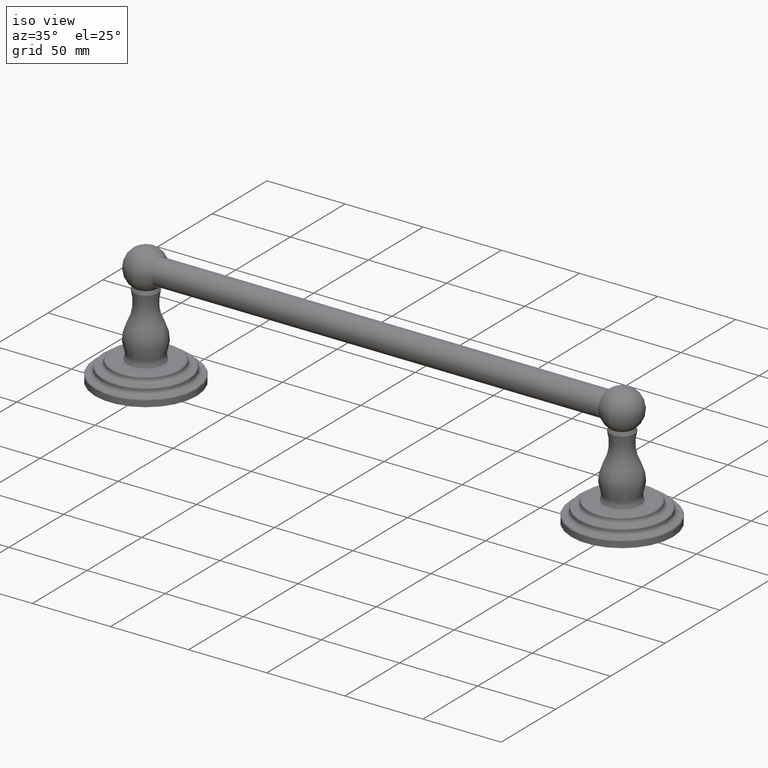
[diagram: clean part render]
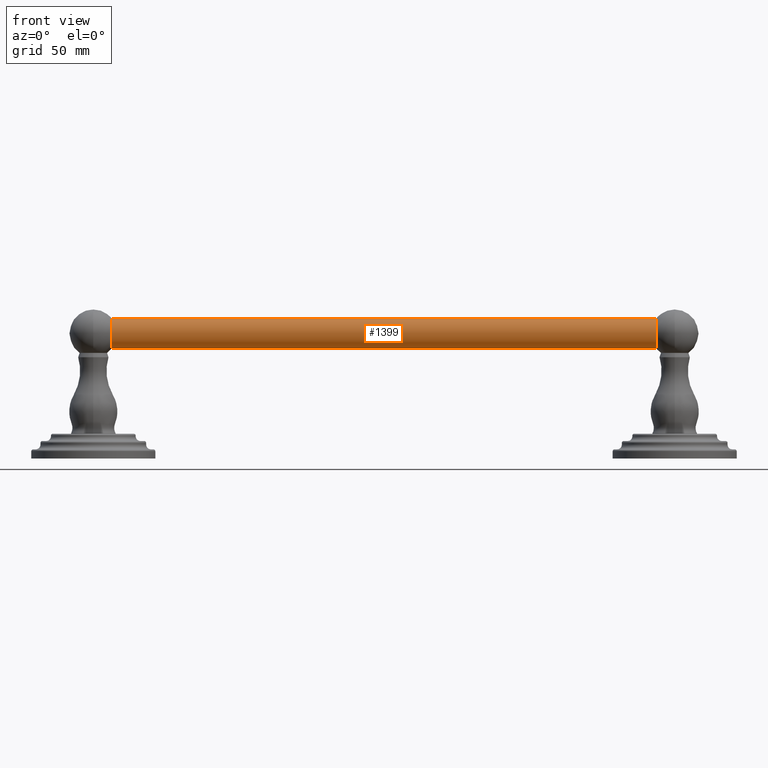
[diagram: tour spotlight — one face highlighted and labeled with its STEP entity id]
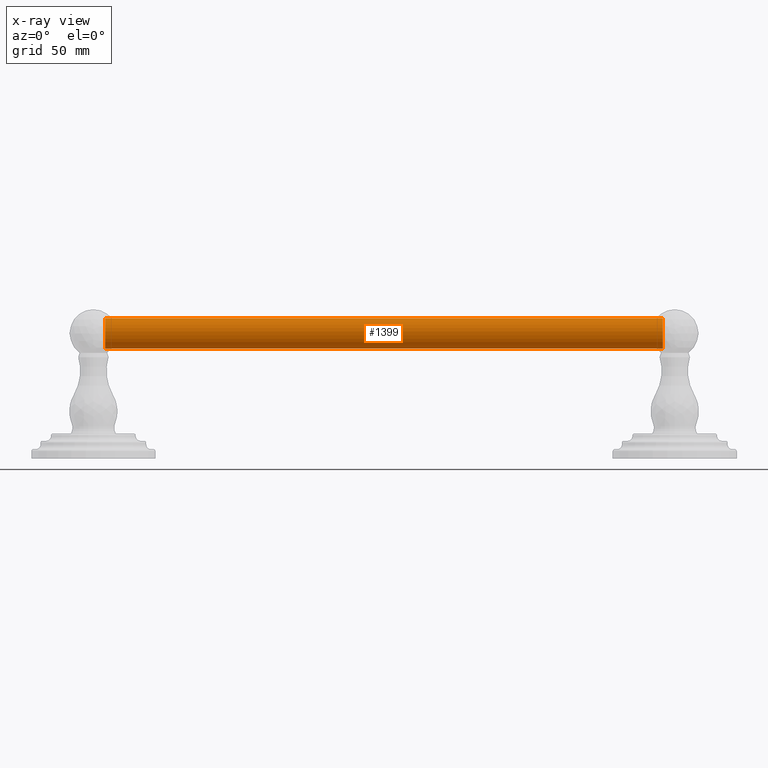
[diagram: x-ray of the same camera — body ghosted, this tour face saturated]
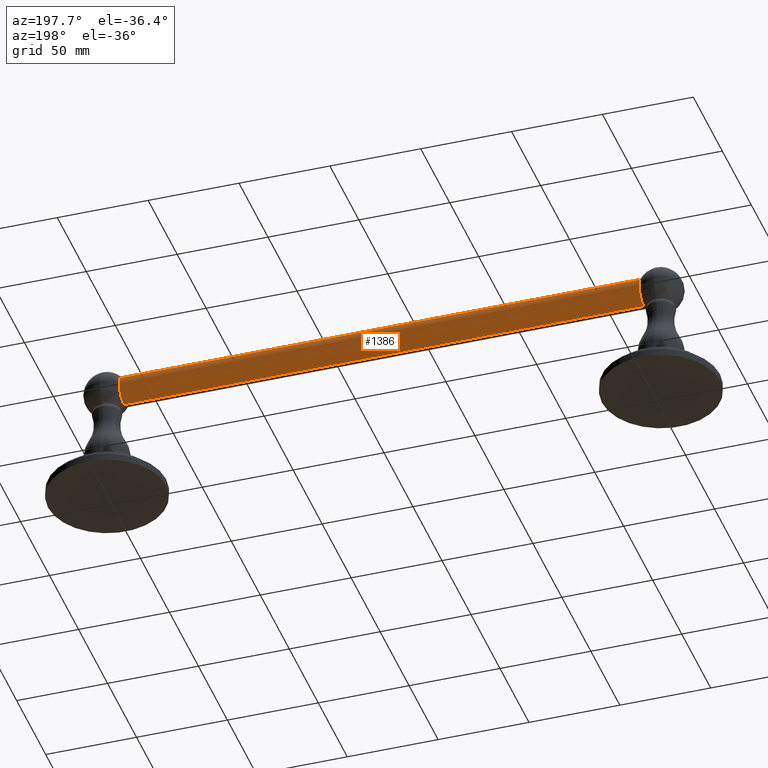
[diagram: tour spotlight — one face highlighted and labeled with its STEP entity id]
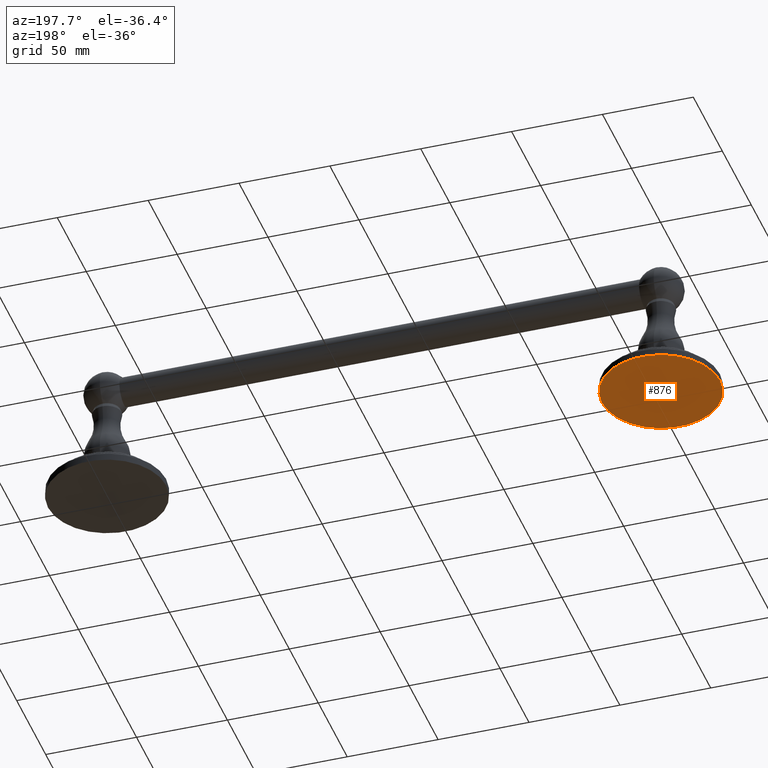
[diagram: tour spotlight — one face highlighted and labeled with its STEP entity id]
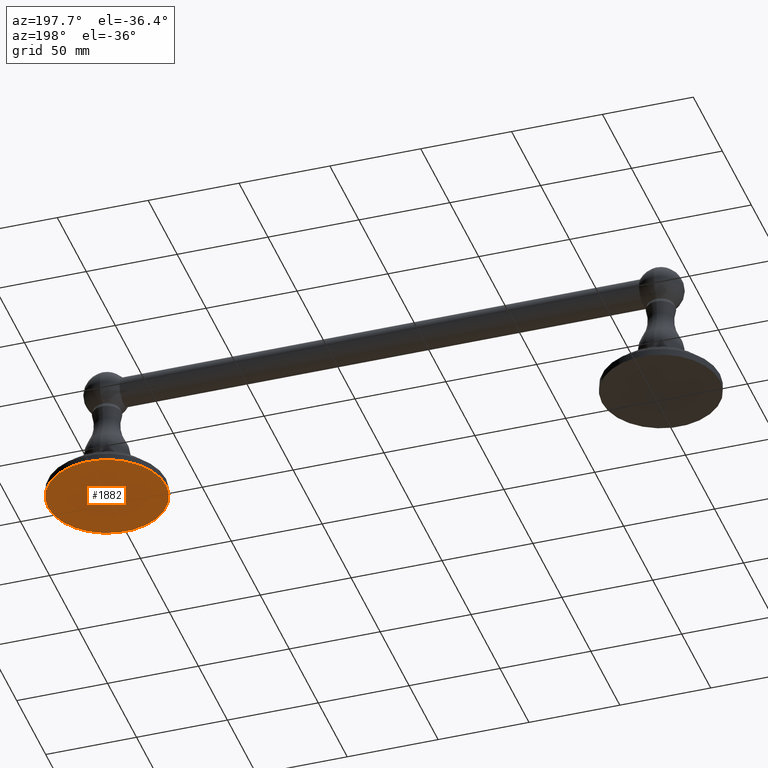
[diagram: tour spotlight — one face highlighted and labeled with its STEP entity id]
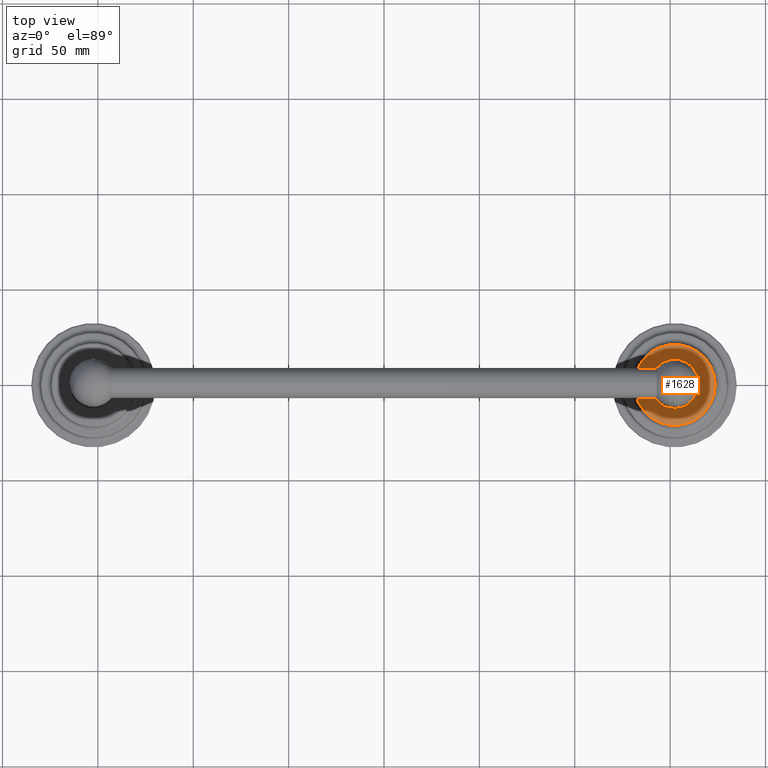
[diagram: tour spotlight — one face highlighted and labeled with its STEP entity id]
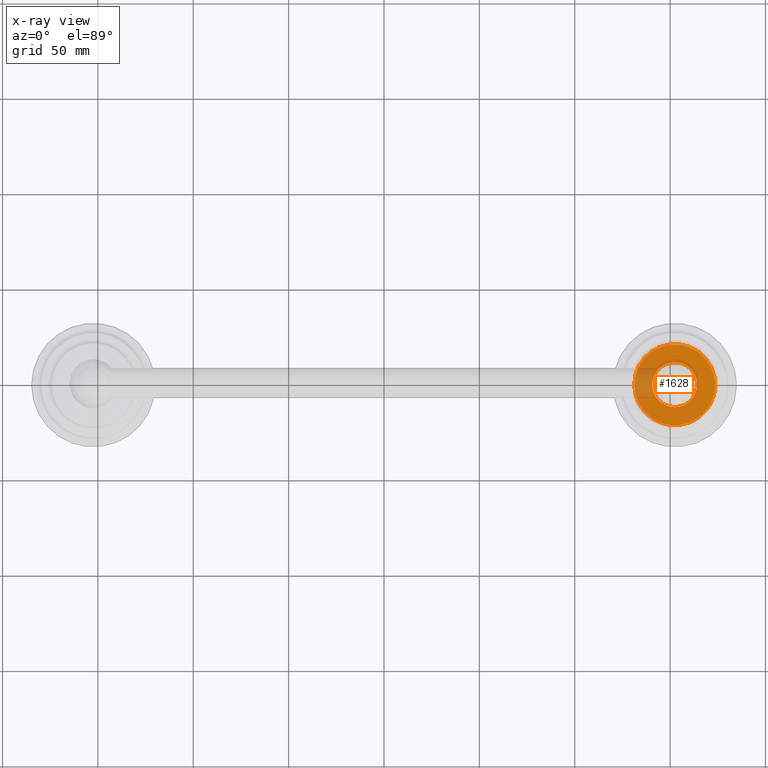
[diagram: x-ray of the same camera — body ghosted, this tour face saturated]
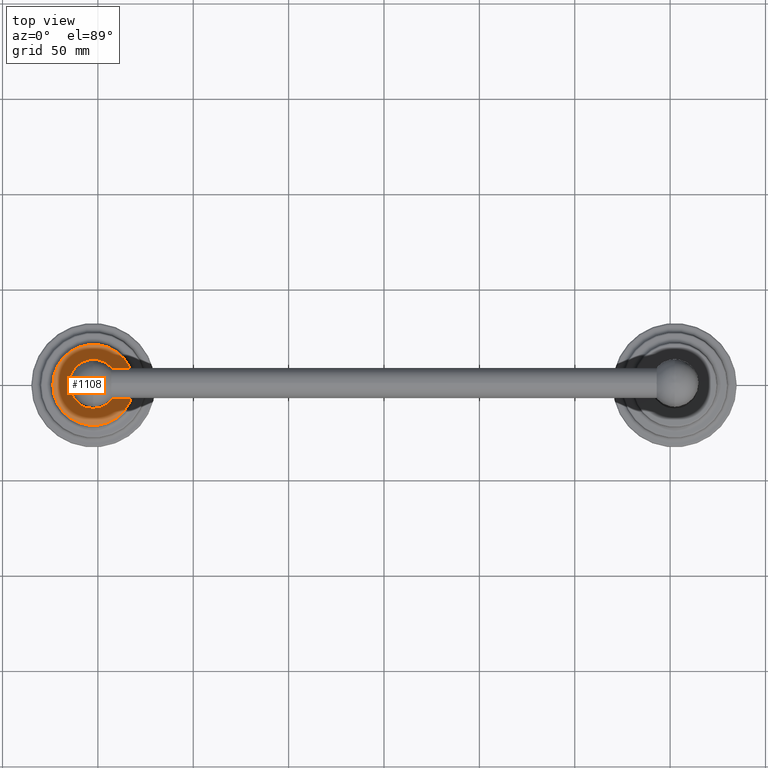
[diagram: tour spotlight — one face highlighted and labeled with its STEP entity id]
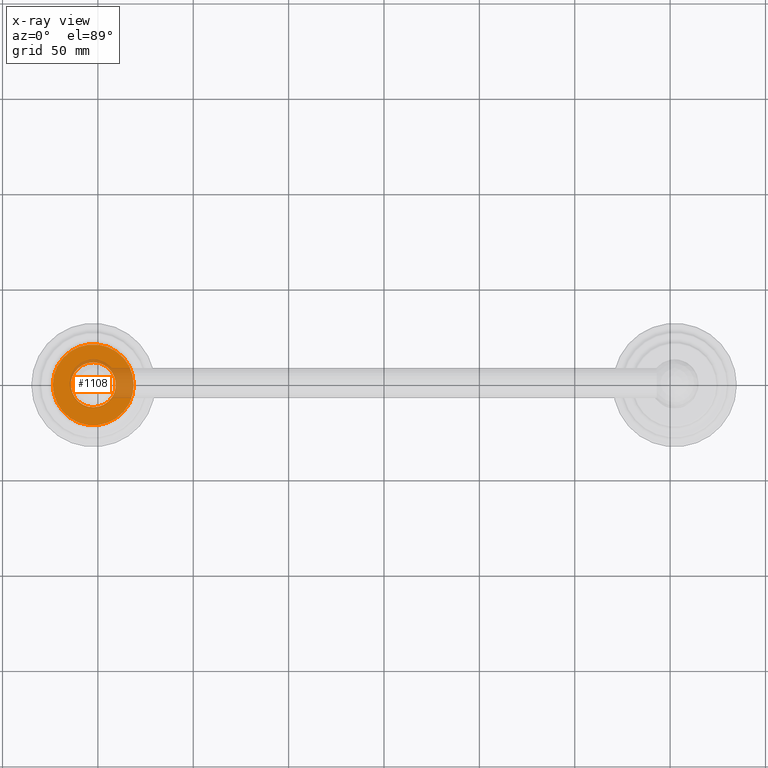
[diagram: x-ray of the same camera — body ghosted, this tour face saturated]
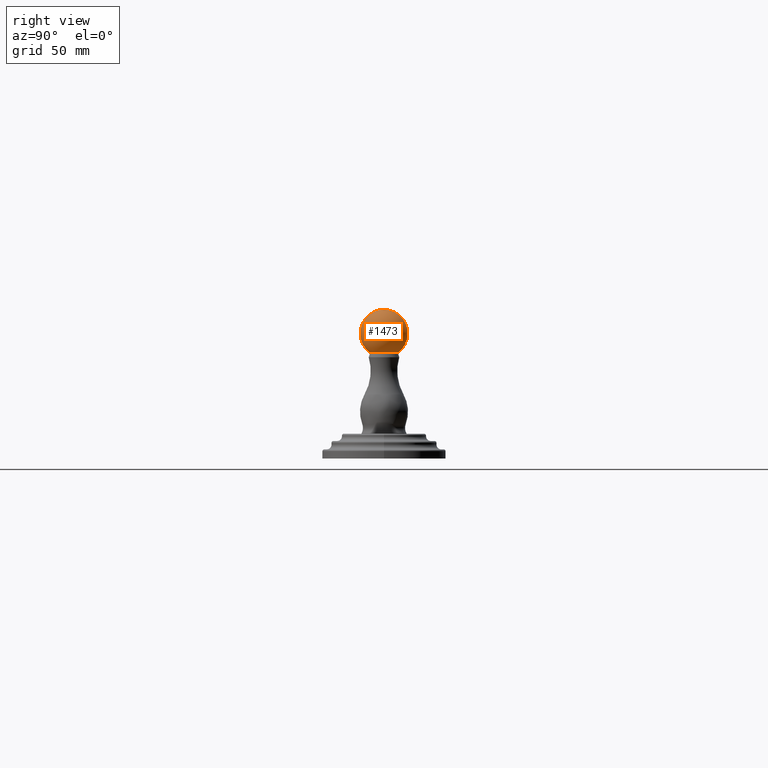
[diagram: tour spotlight — one face highlighted and labeled with its STEP entity id]
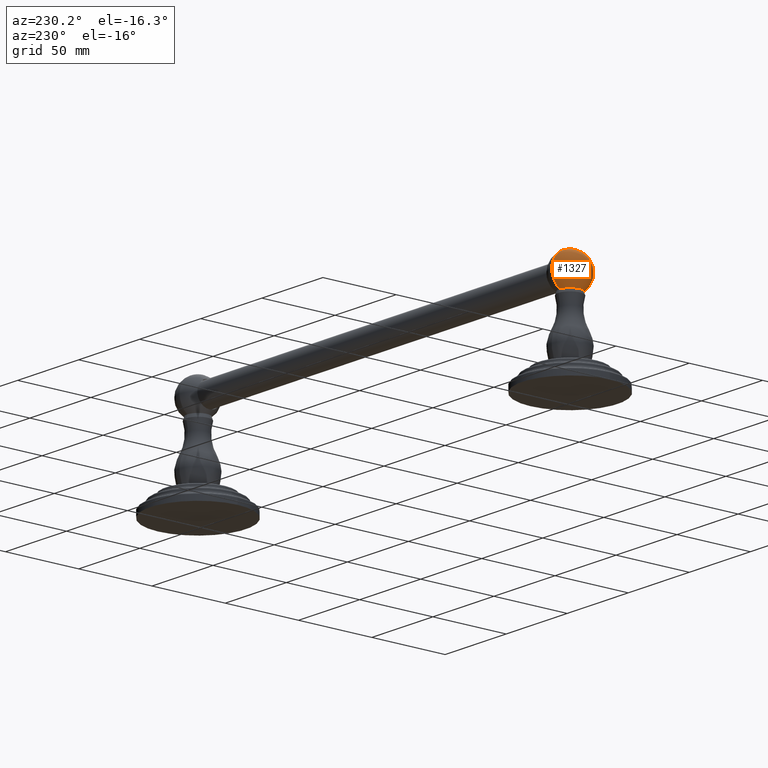
[diagram: tour spotlight — one face highlighted and labeled with its STEP entity id]
A machine part: a face-by-face anatomy tour. The part has 72 B-rep faces; the first image is the clean iso view, then the 8 largest visible faces are spotlighted one at a time (largest first), each with its STEP entity span.

Face 1 — front view, entity #1399. An x-ray twin of the same camera follows (body ghosted, this face saturated) — the face is partly hidden behind the body. In plain terms, the highlighted cylindrical surface (edge-blend (fillet) strip) has radius 7.9375 mm, axis along (1, 0, 0).
Definition (entity closure, byte-faithful):
#326=CARTESIAN_POINT('',(-5.755E0,0.E0,2.582649490855E0));
#327=DIRECTION('',(1.E0,0.E0,0.E0));
#328=DIRECTION('',(0.E0,0.E0,1.E0));
#329=AXIS2_PLACEMENT_3D('',#326,#327,#328);
#340=DIRECTION('',(1.E0,0.E0,0.E0));
#341=VECTOR('',#340,1.151E1);
#342=CARTESIAN_POINT('',(-5.755E0,0.E0,2.270149490855E0));
#343=LINE('',#342,#341);
#344=DIRECTION('',(1.E0,0.E0,0.E0));
#345=VECTOR('',#344,1.151E1);
#346=CARTESIAN_POINT('',(-5.755E0,0.E0,2.895149490855E0));
#347=LINE('',#346,#345);
#353=CARTESIAN_POINT('',(5.755E0,0.E0,2.582649490855E0));
#354=DIRECTION('',(1.E0,0.E0,0.E0));
#355=DIRECTION('',(0.E0,0.E0,1.E0));
#356=AXIS2_PLACEMENT_3D('',#353,#354,#355);
#842=CARTESIAN_POINT('',(-5.755E0,0.E0,2.270149490855E0));
#843=CARTESIAN_POINT('',(-5.755E0,0.E0,2.895149490855E0));
#844=VERTEX_POINT('',#842);
#845=VERTEX_POINT('',#843);
#846=CARTESIAN_POINT('',(5.755E0,0.E0,2.270149490855E0));
#847=CARTESIAN_POINT('',(5.755E0,0.E0,2.895149490855E0));
#848=VERTEX_POINT('',#846);
#849=VERTEX_POINT('',#847);
#1387=CARTESIAN_POINT('',(-5.945E0,0.E0,2.582649490855E0));
#1388=DIRECTION('',(1.E0,0.E0,0.E0));
#1389=DIRECTION('',(0.E0,0.E0,-1.E0));
#1390=AXIS2_PLACEMENT_3D('',#1387,#1388,#1389);
#1391=CYLINDRICAL_SURFACE('',#1390,3.125E-1);
#1392=ORIENTED_EDGE('',*,*,#1355,.F.);
#1393=ORIENTED_EDGE('',*,*,#1382,.T.);
#1395=ORIENTED_EDGE('',*,*,#1394,.T.);
#1396=ORIENTED_EDGE('',*,*,#1378,.F.);
#1397=EDGE_LOOP('',(#1392,#1393,#1395,#1396));
#1398=FACE_OUTER_BOUND('',#1397,.F.);
#1399=ADVANCED_FACE('',(#1398),#1391,.T.);
#330=CIRCLE('',#329,3.125E-1);
#357=CIRCLE('',#356,3.125E-1);
#1355=EDGE_CURVE('',#845,#844,#330,.T.);
#1378=EDGE_CURVE('',#844,#848,#343,.T.);
#1382=EDGE_CURVE('',#845,#849,#347,.T.);
#1394=EDGE_CURVE('',#849,#848,#357,.T.);

Face 2 — auxiliary view, entity #1386. In plain terms, the highlighted cylindrical surface (edge-blend (fillet) strip) has radius 7.9375 mm, axis along (1, 0, 0).
Definition (entity closure, byte-faithful):
#321=CARTESIAN_POINT('',(-5.755E0,0.E0,2.582649490855E0));
#322=DIRECTION('',(1.E0,0.E0,0.E0));
#323=DIRECTION('',(0.E0,0.E0,-1.E0));
#324=AXIS2_PLACEMENT_3D('',#321,#322,#323);
#340=DIRECTION('',(1.E0,0.E0,0.E0));
#341=VECTOR('',#340,1.151E1);
#342=CARTESIAN_POINT('',(-5.755E0,0.E0,2.270149490855E0));
#343=LINE('',#342,#341);
#344=DIRECTION('',(1.E0,0.E0,0.E0));
#345=VECTOR('',#344,1.151E1);
#346=CARTESIAN_POINT('',(-5.755E0,0.E0,2.895149490855E0));
#347=LINE('',#346,#345);
#348=CARTESIAN_POINT('',(5.755E0,0.E0,2.582649490855E0));
#349=DIRECTION('',(1.E0,0.E0,0.E0));
#350=DIRECTION('',(0.E0,0.E0,-1.E0));
#351=AXIS2_PLACEMENT_3D('',#348,#349,#350);
#842=CARTESIAN_POINT('',(-5.755E0,0.E0,2.270149490855E0));
#843=CARTESIAN_POINT('',(-5.755E0,0.E0,2.895149490855E0));
#844=VERTEX_POINT('',#842);
#845=VERTEX_POINT('',#843);
#846=CARTESIAN_POINT('',(5.755E0,0.E0,2.270149490855E0));
#847=CARTESIAN_POINT('',(5.755E0,0.E0,2.895149490855E0));
#848=VERTEX_POINT('',#846);
#849=VERTEX_POINT('',#847);
#1372=CARTESIAN_POINT('',(-5.945E0,0.E0,2.582649490855E0));
#1373=DIRECTION('',(1.E0,0.E0,0.E0));
#1374=DIRECTION('',(0.E0,0.E0,-1.E0));
#1375=AXIS2_PLACEMENT_3D('',#1372,#1373,#1374);
#1376=CYLINDRICAL_SURFACE('',#1375,3.125E-1);
#1377=ORIENTED_EDGE('',*,*,#1353,.F.);
#1379=ORIENTED_EDGE('',*,*,#1378,.T.);
#1381=ORIENTED_EDGE('',*,*,#1380,.T.);
#1383=ORIENTED_EDGE('',*,*,#1382,.F.);
#1384=EDGE_LOOP('',(#1377,#1379,#1381,#1383));
#1385=FACE_OUTER_BOUND('',#1384,.F.);
#1386=ADVANCED_FACE('',(#1385),#1376,.T.);
#325=CIRCLE('',#324,3.125E-1);
#352=CIRCLE('',#351,3.125E-1);
#1353=EDGE_CURVE('',#844,#845,#325,.T.);
#1378=EDGE_CURVE('',#844,#848,#343,.T.);
#1380=EDGE_CURVE('',#848,#849,#352,.T.);
#1382=EDGE_CURVE('',#845,#849,#347,.T.);

Face 3 — auxiliary view, entity #876. In plain terms, the highlighted planar face has unit normal (0, 0, 1).
Definition (entity closure, byte-faithful):
#2=CARTESIAN_POINT('',(-6.E0,0.E0,0.E0));
#3=DIRECTION('',(0.E0,0.E0,1.E0));
#4=DIRECTION('',(-1.E0,0.E0,0.E0));
#5=AXIS2_PLACEMENT_3D('',#2,#3,#4);
#12=CARTESIAN_POINT('',(-6.E0,0.E0,0.E0));
#13=DIRECTION('',(0.E0,0.E0,-1.E0));
#14=DIRECTION('',(-1.E0,0.E0,0.E0));
#15=AXIS2_PLACEMENT_3D('',#12,#13,#14);
#722=CARTESIAN_POINT('',(-7.28E0,0.E0,0.E0));
#723=CARTESIAN_POINT('',(-4.72E0,0.E0,0.E0));
#724=VERTEX_POINT('',#722);
#725=VERTEX_POINT('',#723);
#866=CARTESIAN_POINT('',(-6.E0,1.2405E0,0.E0));
#867=DIRECTION('',(0.E0,0.E0,1.E0));
#868=DIRECTION('',(0.E0,1.E0,0.E0));
#869=AXIS2_PLACEMENT_3D('',#866,#867,#868);
#870=PLANE('',#869);
#871=ORIENTED_EDGE('',*,*,#855,.T.);
#873=ORIENTED_EDGE('',*,*,#872,.F.);
#874=EDGE_LOOP('',(#871,#873));
#875=FACE_OUTER_BOUND('',#874,.F.);
#876=ADVANCED_FACE('',(#875),#870,.F.);
#6=CIRCLE('',#5,1.28E0);
#16=CIRCLE('',#15,1.28E0);
#855=EDGE_CURVE('',#724,#725,#6,.T.);
#872=EDGE_CURVE('',#724,#725,#16,.T.);

Face 4 — auxiliary view, entity #1882. In plain terms, the highlighted planar face has unit normal (0, 0, 1).
Definition (entity closure, byte-faithful):
#640=CARTESIAN_POINT('',(6.E0,0.E0,0.E0));
#641=DIRECTION('',(0.E0,0.E0,-1.E0));
#642=DIRECTION('',(-1.E0,0.E0,0.E0));
#643=AXIS2_PLACEMENT_3D('',#640,#641,#642);
#658=CARTESIAN_POINT('',(6.E0,0.E0,0.E0));
#659=DIRECTION('',(0.E0,0.E0,1.E0));
#660=DIRECTION('',(-1.E0,0.E0,0.E0));
#661=AXIS2_PLACEMENT_3D('',#658,#659,#660);
#766=CARTESIAN_POINT('',(4.72E0,0.E0,0.E0));
#767=CARTESIAN_POINT('',(7.28E0,0.E0,0.E0));
#768=VERTEX_POINT('',#766);
#769=VERTEX_POINT('',#767);
#1872=CARTESIAN_POINT('',(6.E0,1.2405E0,0.E0));
#1873=DIRECTION('',(0.E0,0.E0,1.E0));
#1874=DIRECTION('',(0.E0,1.E0,0.E0));
#1875=AXIS2_PLACEMENT_3D('',#1872,#1873,#1874);
#1876=PLANE('',#1875);
#1878=ORIENTED_EDGE('',*,*,#1877,.T.);
#1879=ORIENTED_EDGE('',*,*,#1862,.F.);
#1880=EDGE_LOOP('',(#1878,#1879));
#1881=FACE_OUTER_BOUND('',#1880,.F.);
#1882=ADVANCED_FACE('',(#1881),#1876,.F.);
#644=CIRCLE('',#643,1.28E0);
#662=CIRCLE('',#661,1.28E0);
#1862=EDGE_CURVE('',#768,#769,#644,.T.);
#1877=EDGE_CURVE('',#768,#769,#662,.T.);

Face 5 — top view, entity #1628. An x-ray twin of the same camera follows (body ghosted, this face saturated) — the face is partly hidden behind the body. In plain terms, the highlighted planar face has unit normal (0, 0, 1).
Definition (entity closure, byte-faithful):
#474=CARTESIAN_POINT('',(6.E0,0.E0,5.12E-1));
#475=DIRECTION('',(0.E0,0.E0,1.E0));
#476=DIRECTION('',(2.488430917263E-14,-1.E0,0.E0));
#477=AXIS2_PLACEMENT_3D('',#474,#475,#476);
#479=CARTESIAN_POINT('',(6.E0,0.E0,5.12E-1));
#480=DIRECTION('',(0.E0,0.E0,1.E0));
#481=DIRECTION('',(2.488430917263E-14,1.E0,0.E0));
#482=AXIS2_PLACEMENT_3D('',#479,#480,#481);
#484=CARTESIAN_POINT('',(6.E0,0.E0,5.12E-1));
#485=DIRECTION('',(0.E0,0.E0,1.E0));
#486=DIRECTION('',(-1.E0,0.E0,0.E0));
#487=AXIS2_PLACEMENT_3D('',#484,#485,#486);
#494=CARTESIAN_POINT('',(6.E0,0.E0,5.12E-1));
#495=DIRECTION('',(0.E0,0.E0,1.E0));
#496=DIRECTION('',(1.E0,0.E0,0.E0));
#497=AXIS2_PLACEMENT_3D('',#494,#495,#496);
#770=CARTESIAN_POINT('',(5.165E0,0.E0,5.12E-1));
#771=CARTESIAN_POINT('',(6.835E0,0.E0,5.12E-1));
#772=VERTEX_POINT('',#770);
#773=VERTEX_POINT('',#771);
#838=CARTESIAN_POINT('',(6.E0,-4.64E-1,5.12E-1));
#839=CARTESIAN_POINT('',(6.E0,4.64E-1,5.12E-1));
#840=VERTEX_POINT('',#838);
#841=VERTEX_POINT('',#839);
#1612=CARTESIAN_POINT('',(6.E0,0.E0,5.12E-1));
#1613=DIRECTION('',(0.E0,0.E0,1.E0));
#1614=DIRECTION('',(-1.E0,0.E0,0.E0));
#1615=AXIS2_PLACEMENT_3D('',#1612,#1613,#1614);
#1616=PLANE('',#1615);
#1618=ORIENTED_EDGE('',*,*,#1617,.F.);
#1620=ORIENTED_EDGE('',*,*,#1619,.F.);
#1621=EDGE_LOOP('',(#1618,#1620));
#1622=FACE_OUTER_BOUND('',#1621,.F.);
#1623=ORIENTED_EDGE('',*,*,#1602,.T.);
#1625=ORIENTED_EDGE('',*,*,#1624,.T.);
#1626=EDGE_LOOP('',(#1623,#1625));
#1627=FACE_BOUND('',#1626,.F.);
#1628=ADVANCED_FACE('',(#1622,#1627),#1616,.T.);
#478=CIRCLE('',#477,4.64E-1);
#483=CIRCLE('',#482,4.64E-1);
#488=CIRCLE('',#487,8.35E-1);
#498=CIRCLE('',#497,8.35E-1);
#1602=EDGE_CURVE('',#840,#841,#478,.T.);
#1617=EDGE_CURVE('',#772,#773,#488,.T.);
#1619=EDGE_CURVE('',#773,#772,#498,.T.);
#1624=EDGE_CURVE('',#841,#840,#483,.T.);

Face 6 — top view, entity #1108. An x-ray twin of the same camera follows (body ghosted, this face saturated) — the face is partly hidden behind the body. In plain terms, the highlighted planar face has unit normal (0, 0, 1).
Definition (entity closure, byte-faithful):
#148=CARTESIAN_POINT('',(-6.E0,0.E0,5.12E-1));
#149=DIRECTION('',(0.E0,0.E0,1.E0));
#150=DIRECTION('',(-1.E0,0.E0,0.E0));
#151=AXIS2_PLACEMENT_3D('',#148,#149,#150);
#158=CARTESIAN_POINT('',(-6.E0,0.E0,5.12E-1));
#159=DIRECTION('',(0.E0,0.E0,1.E0));
#160=DIRECTION('',(2.488430917263E-14,-1.E0,0.E0));
#161=AXIS2_PLACEMENT_3D('',#158,#159,#160);
#163=CARTESIAN_POINT('',(-6.E0,0.E0,5.12E-1));
#164=DIRECTION('',(0.E0,0.E0,1.E0));
#165=DIRECTION('',(2.488430917263E-14,1.E0,0.E0));
#166=AXIS2_PLACEMENT_3D('',#163,#164,#165);
#168=CARTESIAN_POINT('',(-6.E0,0.E0,5.12E-1));
#169=DIRECTION('',(0.E0,0.E0,1.E0));
#170=DIRECTION('',(1.E0,0.E0,0.E0));
#171=AXIS2_PLACEMENT_3D('',#168,#169,#170);
#726=CARTESIAN_POINT('',(-6.835E0,0.E0,5.12E-1));
#727=CARTESIAN_POINT('',(-5.165E0,0.E0,5.12E-1));
#728=VERTEX_POINT('',#726);
#729=VERTEX_POINT('',#727);
#804=CARTESIAN_POINT('',(-6.E0,-4.64E-1,5.12E-1));
#805=CARTESIAN_POINT('',(-6.E0,4.64E-1,5.12E-1));
#806=VERTEX_POINT('',#804);
#807=VERTEX_POINT('',#805);
#1092=CARTESIAN_POINT('',(-6.E0,0.E0,5.12E-1));
#1093=DIRECTION('',(0.E0,0.E0,1.E0));
#1094=DIRECTION('',(-1.E0,0.E0,0.E0));
#1095=AXIS2_PLACEMENT_3D('',#1092,#1093,#1094);
#1096=PLANE('',#1095);
#1097=ORIENTED_EDGE('',*,*,#1082,.F.);
#1099=ORIENTED_EDGE('',*,*,#1098,.F.);
#1100=EDGE_LOOP('',(#1097,#1099));
#1101=FACE_OUTER_BOUND('',#1100,.F.);
#1103=ORIENTED_EDGE('',*,*,#1102,.T.);
#1105=ORIENTED_EDGE('',*,*,#1104,.T.);
#1106=EDGE_LOOP('',(#1103,#1105));
#1107=FACE_BOUND('',#1106,.F.);
#1108=ADVANCED_FACE('',(#1101,#1107),#1096,.T.);
#152=CIRCLE('',#151,8.35E-1);
#162=CIRCLE('',#161,4.64E-1);
#167=CIRCLE('',#166,4.64E-1);
#172=CIRCLE('',#171,8.35E-1);
#1082=EDGE_CURVE('',#728,#729,#152,.T.);
#1098=EDGE_CURVE('',#729,#728,#172,.T.);
#1102=EDGE_CURVE('',#806,#807,#162,.T.);
#1104=EDGE_CURVE('',#807,#806,#167,.T.);

Face 7 — right view, entity #1473. In plain terms, the highlighted spherical surface has radius 12.5161 mm.
Definition (entity closure, byte-faithful):
#376=CARTESIAN_POINT('',(6.E0,0.E0,2.582649490855E0));
#377=DIRECTION('',(-1.E0,0.E0,0.E0));
#378=DIRECTION('',(0.E0,-5.777922344719E-1,-8.161838847858E-1));
#379=AXIS2_PLACEMENT_3D('',#376,#377,#378);
#386=CARTESIAN_POINT('',(6.E0,0.E0,2.582649490855E0));
#387=DIRECTION('',(1.E0,0.E0,0.E0));
#388=DIRECTION('',(0.E0,5.777922344719E-1,-8.161838847858E-1));
#389=AXIS2_PLACEMENT_3D('',#386,#387,#388);
#401=CARTESIAN_POINT('',(6.E0,0.E0,2.180466186033E0));
#402=DIRECTION('',(0.E0,0.E0,1.E0));
#403=DIRECTION('',(0.E0,-1.E0,0.E0));
#404=AXIS2_PLACEMENT_3D('',#401,#402,#403);
#809=CARTESIAN_POINT('',(6.E0,-2.847132793135E-1,2.180466186033E0));
#811=VERTEX_POINT('',#809);
#812=CARTESIAN_POINT('',(6.E0,0.E0,3.075410144819E0));
#813=VERTEX_POINT('',#812);
#815=CARTESIAN_POINT('',(6.E0,2.847132793135E-1,2.180466186033E0));
#817=VERTEX_POINT('',#815);
#1462=CARTESIAN_POINT('',(6.E0,0.E0,2.582649490855E0));
#1463=DIRECTION('',(0.E0,0.E0,1.E0));
#1464=DIRECTION('',(0.E0,-1.E0,0.E0));
#1465=AXIS2_PLACEMENT_3D('',#1462,#1463,#1464);
#1466=SPHERICAL_SURFACE('',#1465,4.927606539636E-1);
#1467=ORIENTED_EDGE('',*,*,#1449,.T.);
#1468=ORIENTED_EDGE('',*,*,#1453,.F.);
#1470=ORIENTED_EDGE('',*,*,#1469,.F.);
#1471=EDGE_LOOP('',(#1467,#1468,#1470));
#1472=FACE_OUTER_BOUND('',#1471,.F.);
#1473=ADVANCED_FACE('',(#1472),#1466,.T.);
#380=CIRCLE('',#379,4.927606539636E-1);
#390=CIRCLE('',#389,4.927606539636E-1);
#405=CIRCLE('',#404,2.847132793135E-1);
#1449=EDGE_CURVE('',#811,#813,#380,.T.);
#1453=EDGE_CURVE('',#817,#813,#390,.T.);
#1469=EDGE_CURVE('',#811,#817,#405,.T.);

Face 8 — auxiliary view, entity #1327. In plain terms, the highlighted spherical surface has radius 12.5161 mm.
Definition (entity closure, byte-faithful):
#297=CARTESIAN_POINT('',(-6.E0,0.E0,2.582649490855E0));
#298=DIRECTION('',(-1.E0,0.E0,0.E0));
#299=DIRECTION('',(0.E0,-5.777922344719E-1,-8.161838847858E-1));
#300=AXIS2_PLACEMENT_3D('',#297,#298,#299);
#302=CARTESIAN_POINT('',(-6.E0,0.E0,2.180466186033E0));
#303=DIRECTION('',(0.E0,0.E0,-1.E0));
#304=DIRECTION('',(0.E0,-1.E0,0.E0));
#305=AXIS2_PLACEMENT_3D('',#302,#303,#304);
#307=CARTESIAN_POINT('',(-6.E0,0.E0,2.582649490855E0));
#308=DIRECTION('',(1.E0,0.E0,0.E0));
#309=DIRECTION('',(0.E0,5.777922344719E-1,-8.161838847858E-1));
#310=AXIS2_PLACEMENT_3D('',#307,#308,#309);
#778=CARTESIAN_POINT('',(-6.E0,-2.847132793135E-1,2.180466186033E0));
#779=VERTEX_POINT('',#778);
#780=CARTESIAN_POINT('',(-6.E0,0.E0,3.075410144819E0));
#781=VERTEX_POINT('',#780);
#790=CARTESIAN_POINT('',(-6.E0,2.847132793135E-1,2.180466186033E0));
#791=VERTEX_POINT('',#790);
#1317=CARTESIAN_POINT('',(-6.E0,0.E0,2.582649490855E0));
#1318=DIRECTION('',(0.E0,0.E0,1.E0));
#1319=DIRECTION('',(0.E0,-1.E0,0.E0));
#1320=AXIS2_PLACEMENT_3D('',#1317,#1318,#1319);
#1321=SPHERICAL_SURFACE('',#1320,4.927606539636E-1);
#1322=ORIENTED_EDGE('',*,*,#1303,.F.);
#1323=ORIENTED_EDGE('',*,*,#1280,.T.);
#1324=ORIENTED_EDGE('',*,*,#1305,.T.);
#1325=EDGE_LOOP('',(#1322,#1323,#1324));
#1326=FACE_OUTER_BOUND('',#1325,.F.);
#1327=ADVANCED_FACE('',(#1326),#1321,.T.);
#301=CIRCLE('',#300,4.927606539636E-1);
#306=CIRCLE('',#305,2.847132793135E-1);
#311=CIRCLE('',#310,4.927606539636E-1);
#1280=EDGE_CURVE('',#779,#791,#306,.T.);
#1303=EDGE_CURVE('',#779,#781,#301,.T.);
#1305=EDGE_CURVE('',#791,#781,#311,.T.);